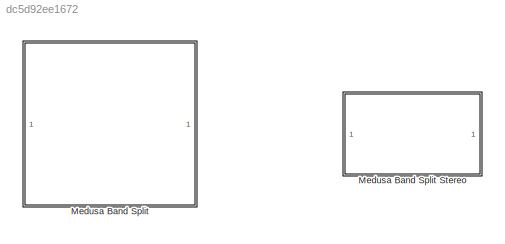
MODEL slx_dc5d92ee1672
KIND library
CONFIG AbsTol = auto
CONFIG EnableMultiTasking = off
CONFIG FixedStep = auto
CONFIG MaxStep = auto
CONFIG MinStep = auto
CONFIG RelTol = 1e-3
CONFIG SampleTimeConstraint = Unconstrained
CONFIG SolverName = VariableStepAuto
CONFIG StartTime = 0.0
CONFIG StopTime = 10.0
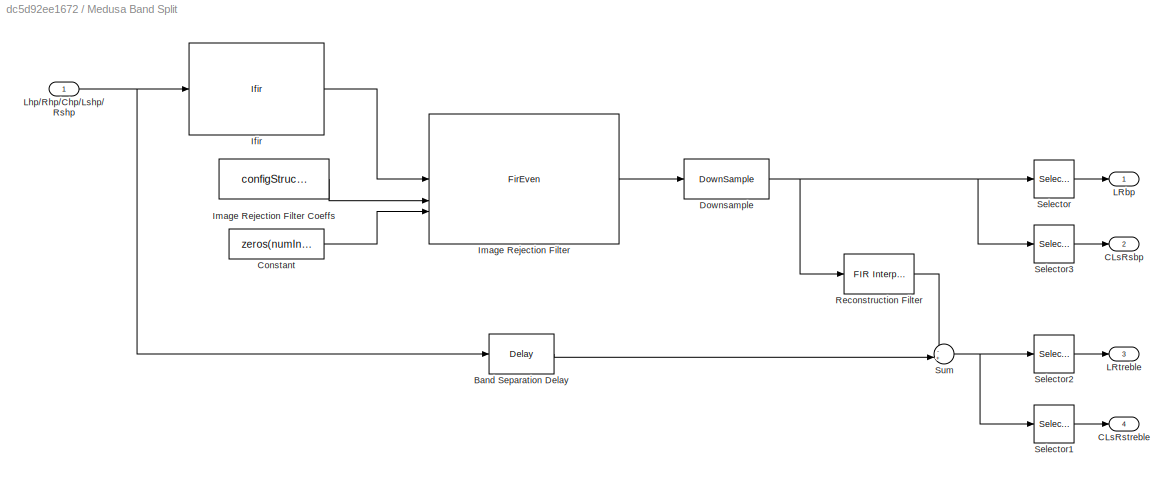
BLOCK [SubSystem] Medusa Band Split
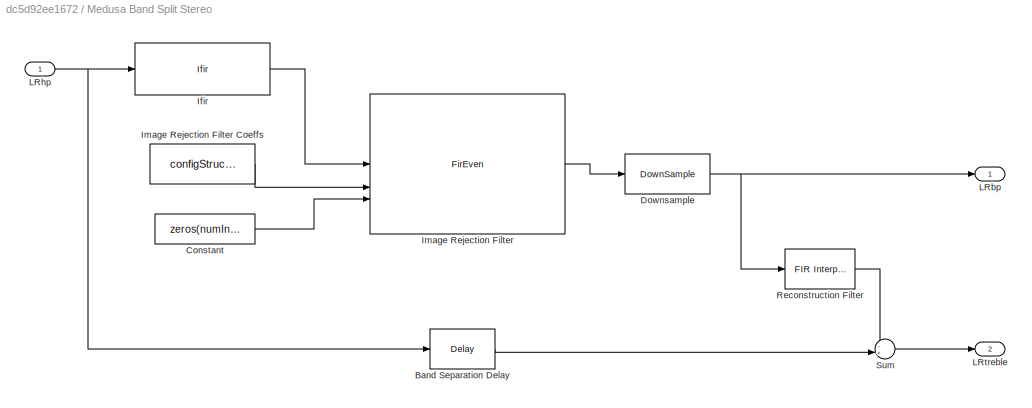
BLOCK [SubSystem] Medusa Band Split Stereo
BLOCK [Delay] Medusa Band Split Stereo/Band Separation Delay
  DelayLength = configStruct.band_separation_delay
  InputPortMap = u0
  InputProcessing = Columns as channels (frame based)
BLOCK [Constant] Medusa Band Split Stereo/Constant
  OutDataTypeStr = uint32
  Value = zeros(numInputs, 1)
BLOCK [DownSample] Medusa Band Split Stereo/Downsample
  N = configStruct.D
BLOCK [Reference] Medusa Band Split Stereo/Ifir  REF=Ifir/Ifir
  SourceBlock = Ifir/Ifir
  SourceType = Interpolated FIR
BLOCK [Reference] Medusa Band Split Stereo/Image Rejection Filter  REF=FirEven/FirEven
  SourceBlock = FirEven/FirEven
  SourceProductName = Bose Blocklib
BLOCK [Constant] Medusa Band Split Stereo/Image Rejection Filter Coeffs
  Value = configStruct.fireven
BLOCK [Outport] Medusa Band Split Stereo/LRbp
  VectorParamsAs1DForOutWhenUnconnected = off
BLOCK [Inport] Medusa Band Split Stereo/LRhp
BLOCK [Outport] Medusa Band Split Stereo/LRtreble
  Port = 2
  VectorParamsAs1DForOutWhenUnconnected = off
BLOCK [Reference] Medusa Band Split Stereo/Reconstruction Filter  REF=dspmlti4/FIR
Interpolation
  SourceBlock = dspmlti4/FIR\nInterpolation
  SourceType = FIR Interpolation
  UserDataPersistent = on
BLOCK [Sum] Medusa Band Split Stereo/Sum
  Inputs = -+|
BLOCK [Delay] Medusa Band Split/Band Separation Delay
  DelayLength = configStruct.band_separation_delay
  InputPortMap = u0
  InputProcessing = Columns as channels (frame based)
BLOCK [Outport] Medusa Band Split/CLsRsbp
  Port = 2
  VectorParamsAs1DForOutWhenUnconnected = off
BLOCK [Outport] Medusa Band Split/CLsRstreble
  Port = 4
  VectorParamsAs1DForOutWhenUnconnected = off
BLOCK [Constant] Medusa Band Split/Constant
  OutDataTypeStr = uint32
  Value = zeros(numInputs,1)
BLOCK [DownSample] Medusa Band Split/Downsample
  N = configStruct.D
BLOCK [Reference] Medusa Band Split/Ifir  REF=Ifir/Ifir
  SourceBlock = Ifir/Ifir
  SourceType = Interpolated FIR
BLOCK [Reference] Medusa Band Split/Image Rejection Filter  REF=FirEven/FirEven
  SourceBlock = FirEven/FirEven
  SourceProductName = Bose Blocklib
BLOCK [Constant] Medusa Band Split/Image Rejection Filter Coeffs
  Value = configStruct.fireven
BLOCK [Outport] Medusa Band Split/LRbp
  VectorParamsAs1DForOutWhenUnconnected = off
BLOCK [Outport] Medusa Band Split/LRtreble
  Port = 3
  VectorParamsAs1DForOutWhenUnconnected = off
BLOCK [Inport] Medusa Band Split/Lhp//Rhp//Chp//Lshp//Rshp
BLOCK [Reference] Medusa Band Split/Reconstruction Filter  REF=dspmlti4/FIR
Interpolation
  SourceBlock = dspmlti4/FIR\nInterpolation
  SourceType = FIR Interpolation
  UserDataPersistent = on
BLOCK [Selector] Medusa Band Split/Selector
  IndexOptions = Select all,Index vector (dialog)
  Indices = [1 3],[1,2]
  InputPortWidth = 3
  NumberOfDimensions = 2
  OutputSizes = 1,1
BLOCK [Selector] Medusa Band Split/Selector1
  IndexOptions = Select all,Index vector (dialog)
  Indices = [1 3],[3,4,5]
  InputPortWidth = 3
  NumberOfDimensions = 2
  OutputSizes = 1,1
BLOCK [Selector] Medusa Band Split/Selector2
  IndexOptions = Select all,Index vector (dialog)
  Indices = [1 3],[1,2]
  InputPortWidth = 3
  NumberOfDimensions = 2
  OutputSizes = 1,1
BLOCK [Selector] Medusa Band Split/Selector3
  IndexOptions = Select all,Index vector (dialog)
  Indices = [1 3],[3,4,5]
  InputPortWidth = 3
  NumberOfDimensions = 2
  OutputSizes = 1,1
BLOCK [Sum] Medusa Band Split/Sum
  Inputs = -+|
LINE Medusa Band Split Stereo/Band Separation Delay:1 -> Medusa Band Split Stereo/Sum:2
LINE Medusa Band Split Stereo/Constant:1 -> Medusa Band Split Stereo/Image Rejection Filter:3
NET Medusa Band Split Stereo/Downsample:1 -> Medusa Band Split Stereo/LRbp:1, Medusa Band Split Stereo/Reconstruction Filter:1
LINE Medusa Band Split Stereo/Ifir:1 -> Medusa Band Split Stereo/Image Rejection Filter:1
LINE Medusa Band Split Stereo/Image Rejection Filter Coeffs:1 -> Medusa Band Split Stereo/Image Rejection Filter:2
LINE Medusa Band Split Stereo/Image Rejection Filter:1 -> Medusa Band Split Stereo/Downsample:1
NET Medusa Band Split Stereo/LRhp:1 -> Medusa Band Split Stereo/Band Separation Delay:1, Medusa Band Split Stereo/Ifir:1
LINE Medusa Band Split Stereo/Reconstruction Filter:1 -> Medusa Band Split Stereo/Sum:1
LINE Medusa Band Split Stereo/Sum:1 -> Medusa Band Split Stereo/LRtreble:1
LINE Medusa Band Split/Band Separation Delay:1 -> Medusa Band Split/Sum:2
LINE Medusa Band Split/Constant:1 -> Medusa Band Split/Image Rejection Filter:3
NET Medusa Band Split/Downsample:1 -> Medusa Band Split/Reconstruction Filter:1, Medusa Band Split/Selector3:1, Medusa Band Split/Selector:1
LINE Medusa Band Split/Ifir:1 -> Medusa Band Split/Image Rejection Filter:1
LINE Medusa Band Split/Image Rejection Filter Coeffs:1 -> Medusa Band Split/Image Rejection Filter:2
LINE Medusa Band Split/Image Rejection Filter:1 -> Medusa Band Split/Downsample:1
NET Medusa Band Split/Lhp//Rhp//Chp//Lshp//Rshp:1 -> Medusa Band Split/Band Separation Delay:1, Medusa Band Split/Ifir:1
LINE Medusa Band Split/Reconstruction Filter:1 -> Medusa Band Split/Sum:1
LINE Medusa Band Split/Selector1:1 -> Medusa Band Split/CLsRstreble:1
LINE Medusa Band Split/Selector2:1 -> Medusa Band Split/LRtreble:1
LINE Medusa Band Split/Selector3:1 -> Medusa Band Split/CLsRsbp:1
LINE Medusa Band Split/Selector:1 -> Medusa Band Split/LRbp:1
NET Medusa Band Split/Sum:1 -> Medusa Band Split/Selector1:1, Medusa Band Split/Selector2:1
note: NET lines group one-source signal fan-out (src -> all destinations, sorted); 1:1 wires keep LINE
